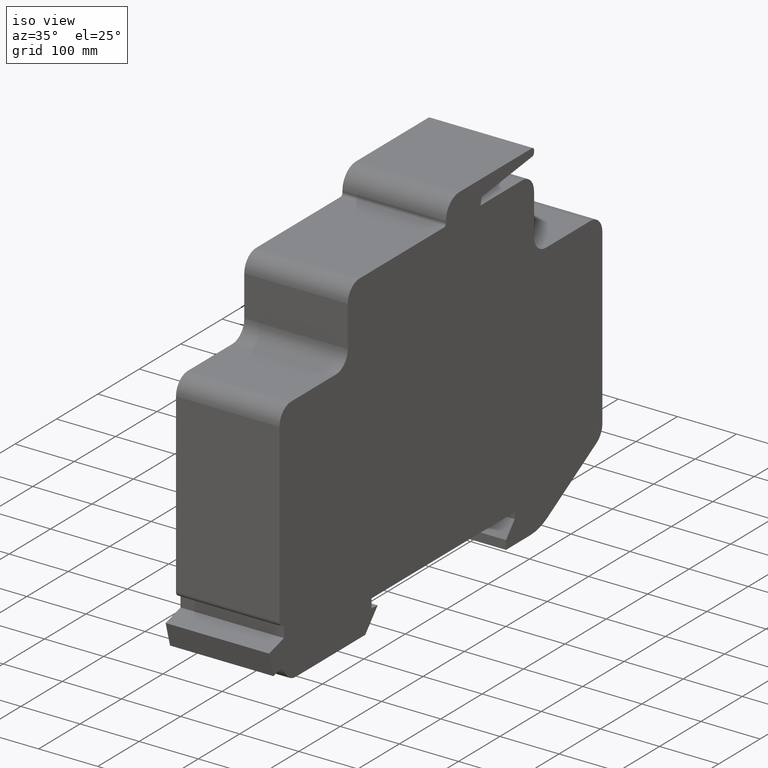
[diagram: clean part render]
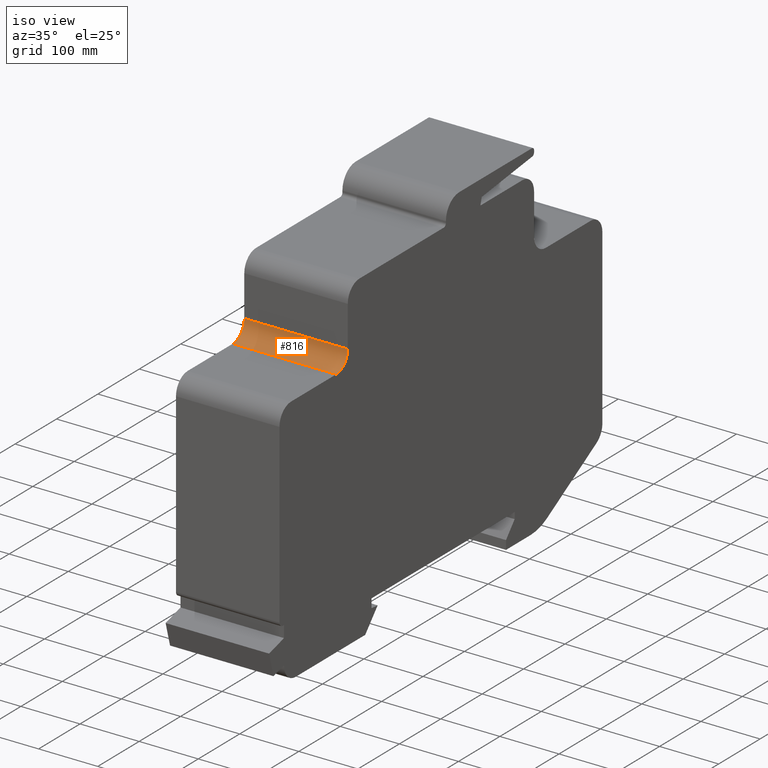
[diagram: same view with one face highlighted and labeled with its STEP entity id]
A machine part, iso view. The second image highlights one B-rep face of the part: STEP entity #816.
In plain terms, the highlighted cylindrical surface (edge-blend (fillet) strip) has radius 28 mm, axis along (1, 0, 0).
Its self-contained STEP definition (entity closure, byte-faithful):
#758=CARTESIAN_POINT('',(175.00000000000028,-431.19999999999976,375.0));
#759=VERTEX_POINT('',#758);
#766=CARTESIAN_POINT('',(0.0,-431.19999999999976,375.0));
#767=VERTEX_POINT('',#766);
#768=CARTESIAN_POINT('',(0.0,-431.19999999999976,375.0));
#769=DIRECTION('',(1.0,0.0,0.0));
#770=VECTOR('',#769,175.00000000000028);
#771=LINE('',#768,#770);
#772=EDGE_CURVE('',#767,#759,#771,.T.);
#784=CARTESIAN_POINT('',(0.0,-431.19999999999959,402.99999999999989));
#785=DIRECTION('',(1.0,0.0,0.0));
#786=DIRECTION('',(0.0,0.707106781186551,-0.707106781186544));
#787=AXIS2_PLACEMENT_3D('',#784,#785,#786);
#788=CYLINDRICAL_SURFACE('',#787,27.999999999999918);
#789=CARTESIAN_POINT('',(175.00000000000028,-403.19999999999982,403.00000000000023));
#790=VERTEX_POINT('',#789);
#791=CARTESIAN_POINT('',(175.00000000000028,-431.19999999999959,402.99999999999989));
#792=DIRECTION('',(1.0,0.0,0.0));
#793=DIRECTION('',(0.0,0.707106781186551,-0.707106781186544));
#794=AXIS2_PLACEMENT_3D('',#791,#792,#793);
#795=CIRCLE('',#794,27.999999999999918);
#796=EDGE_CURVE('',#759,#790,#795,.T.);
#797=ORIENTED_EDGE('',*,*,#796,.T.);
#798=CARTESIAN_POINT('',(0.0,-403.19999999999982,403.00000000000023));
#799=VERTEX_POINT('',#798);
#800=CARTESIAN_POINT('',(0.0,-403.19999999999982,403.00000000000023));
#801=DIRECTION('',(1.0,0.0,0.0));
#802=VECTOR('',#801,175.00000000000028);
#803=LINE('',#800,#802);
#804=EDGE_CURVE('',#799,#790,#803,.T.);
#805=ORIENTED_EDGE('',*,*,#804,.F.);
#806=CARTESIAN_POINT('',(0.0,-431.19999999999959,402.99999999999989));
#807=DIRECTION('',(1.0,0.0,0.0));
#808=DIRECTION('',(0.0,0.707106781186551,-0.707106781186544));
#809=AXIS2_PLACEMENT_3D('',#806,#807,#808);
#810=CIRCLE('',#809,27.999999999999918);
#811=EDGE_CURVE('',#767,#799,#810,.T.);
#812=ORIENTED_EDGE('',*,*,#811,.F.);
#813=ORIENTED_EDGE('',*,*,#772,.T.);
#814=EDGE_LOOP('',(#797,#805,#812,#813));
#815=FACE_OUTER_BOUND('',#814,.T.);
#816=ADVANCED_FACE('',(#815),#788,.F.);